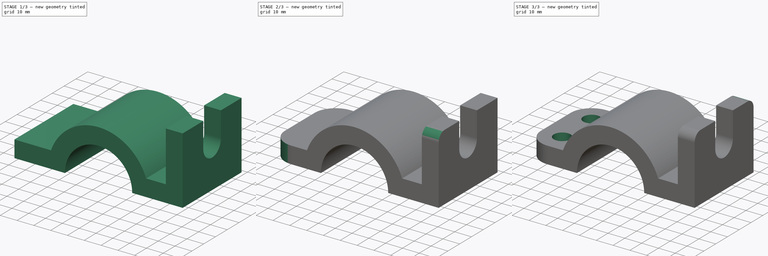
[diagram: build sequence overview — one tinted view per stage of 3, left to right]
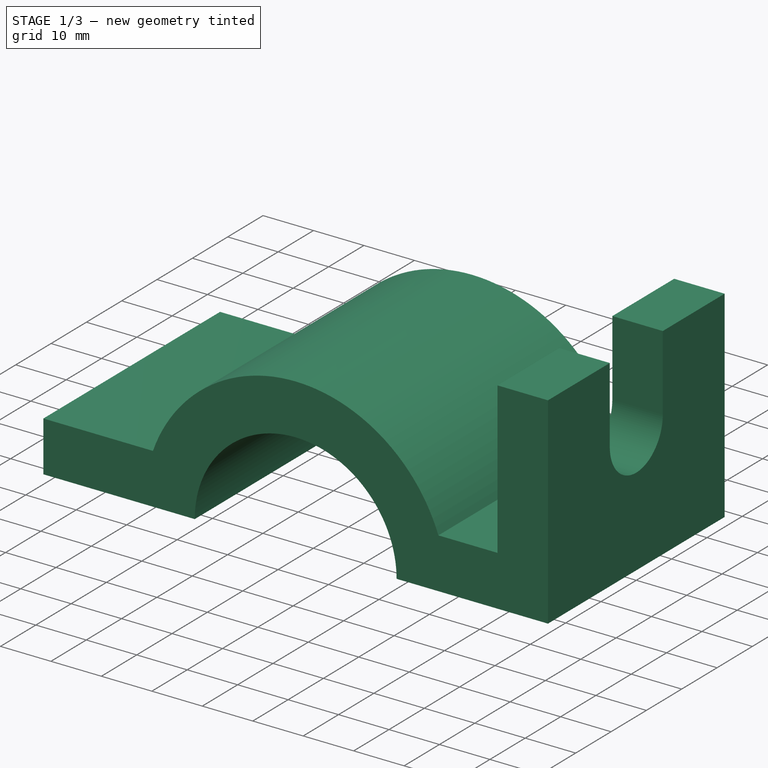
[diagram: stage 1 of 3 — iso view after this stage's code; geometry added in this stage tinted green]
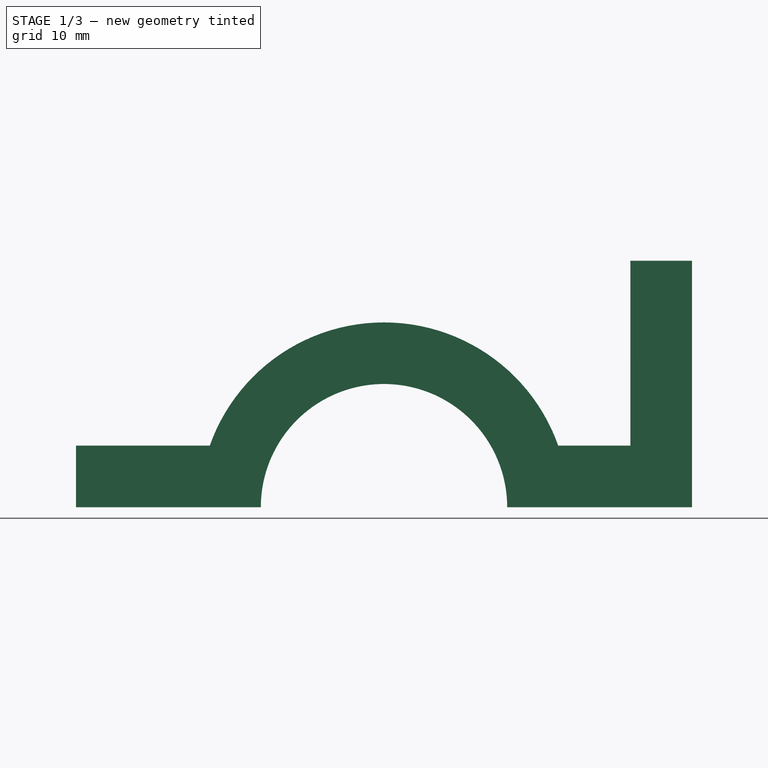
[diagram: stage 1 of 3 — front view after this stage's code; geometry added in this stage tinted green]
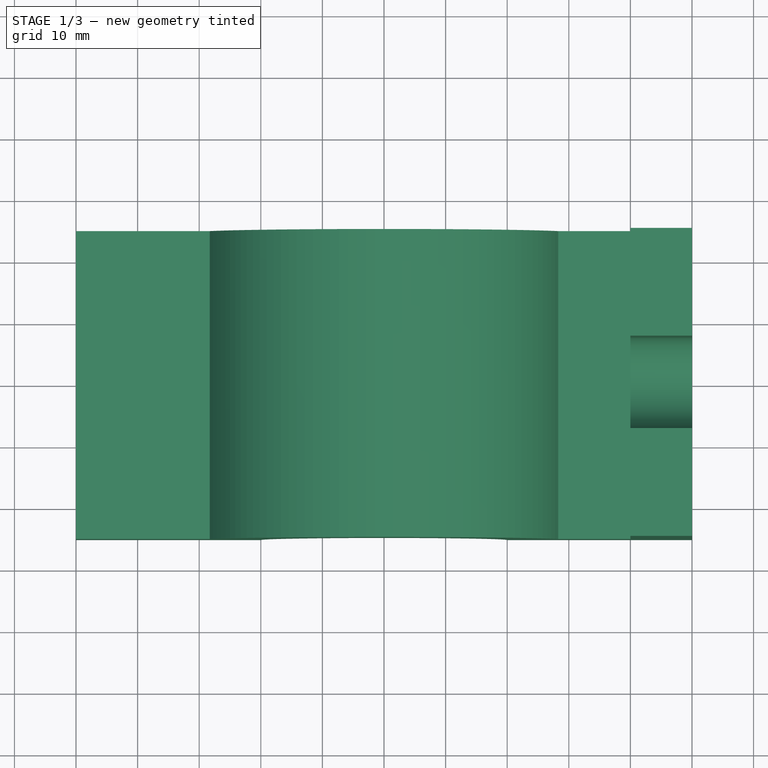
[diagram: stage 1 of 3 — top view after this stage's code; geometry added in this stage tinted green]
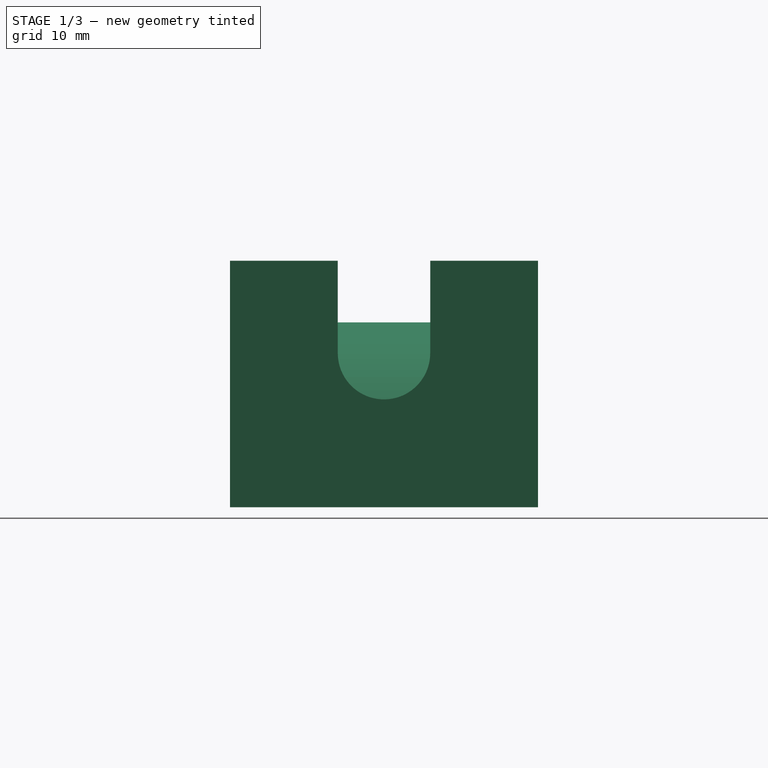
[diagram: stage 1 of 3 — right view after this stage's code; geometry added in this stage tinted green]
FCSTD DOCUMENT  (FreeCAD 0.16R)
Label: Ejer final 14
License: All rights reserved
LicenseURL: http://en.wikipedia.org/wiki/All_rights_reserved
objects: PartDesign::Fillet×4, Sketcher::SketchObject×3, PartDesign::Pad×2, PartDesign::Pocket×1
note: 13 computed .brp shape members not serialized (recipe doc carries the construction recipe); baked Part::Feature solids carry a one-line shape summary decoded from their .brp

FEATURE [Sketcher::SketchObject] Sketch
  Placement = pos=(0,0,0) rot=(-1,0,0;4.71239rad)
  sketch-geometry (8):
    g0: LineSegment StartX=-50 StartY=0 StartZ=0 EndX=-20 EndY=0 EndZ=0
    g1: ArcOfCircle CenterX=0 CenterY=0 CenterZ=0 NormalX=0 NormalY=0 NormalZ=1 Radius=20 StartAngle=0 EndAngle=3.14159
    g2: LineSegment StartX=20 StartY=0 StartZ=0 EndX=50 EndY=0 EndZ=0
    g3: LineSegment StartX=-50 StartY=10 StartZ=0 EndX=-28.2843 EndY=10 EndZ=0
    g4: ArcOfCircle CenterX=0 CenterY=0 CenterZ=0 NormalX=0 NormalY=0 NormalZ=1 Radius=30 StartAngle=0.339837 EndAngle=2.80176
    g5: LineSegment StartX=28.2843 StartY=10 StartZ=0 EndX=50 EndY=10 EndZ=0
    g6: LineSegment StartX=-50 StartY=0 StartZ=0 EndX=-50 EndY=10 EndZ=0
    g7: LineSegment StartX=50 StartY=0 StartZ=0 EndX=50 EndY=10 EndZ=0
  constraints (25):
    c: PointOnObject(g0,g-1)
    c: PointOnObject(g0,g-1)
    c: Coincident(g1,g-1)
    c: Coincident(g1,g0)
    c: Coincident(g2,g1)
    c: Horizontal(g2)
    c: Horizontal(g3)
    c: PointOnObject(g4,g-2)
    c: Coincident(g4,g3)
    c: Coincident(g5,g4)
    c: Horizontal(g5)
    c: Coincident(g4,g-1)
    c: Radius(g4) = 30
    c: Radius(g1) = 20
    c: DistanceX(g2,g2) = 30
    c: DistanceX(g0,g0) = 30
    c: Coincident(g6,g0)
    c: Coincident(g6,g3)
    c: Coincident(g7,g2)
    c: Coincident(g7,g5)
    c: Vertical(g7)
    c: DistanceY(g7,g7) = 10
    c: PointOnObject(g1,g-1)
    c: Vertical(g6)
    c: DistanceY(g6,g6) = 10
FEATURE [PartDesign::Pad] Pad
  Length = 50
  Length2 = 100
  Midplane = true
  Placement = pos=(0,0,0) rot=(-1,0,0;4.71239rad)
  Sketch = -> Sketch
  Type = 0
FEATURE [Sketcher::SketchObject] Sketch001
  ExternalGeometry = -> [Pad]
  Placement = pos=(50,0,0) rot=(0.707107,0,0.707107;3.14159rad)
  Support = -> Pad [Face5]
  sketch-geometry (8):
    g0: LineSegment StartX=0 StartY=25 StartZ=0 EndX=40 EndY=25 EndZ=0
    g1: LineSegment StartX=40 StartY=25 StartZ=0 EndX=40 EndY=7.5 EndZ=0
    g2: LineSegment StartX=40 StartY=7.5 StartZ=0 EndX=25 EndY=7.5 EndZ=0
    g3: LineSegment StartX=0 StartY=25 StartZ=0 EndX=0 EndY=-25 EndZ=0
    g4: LineSegment StartX=0 StartY=-25 StartZ=0 EndX=40 EndY=-25 EndZ=0
    g5: LineSegment StartX=40 StartY=-25 StartZ=0 EndX=40 EndY=-7.5 EndZ=0
    g6: LineSegment StartX=40 StartY=-7.5 StartZ=0 EndX=25 EndY=-7.5 EndZ=0
    g7: ArcOfCircle CenterX=25 CenterY=0 CenterZ=0 NormalX=0 NormalY=0 NormalZ=1 Radius=7.5 StartAngle=1.5708 EndAngle=4.71239
  constraints (23):
    c: Coincident(g-3,g0)
    c: Horizontal(g0)
    c: Coincident(g0,g1)
    c: Vertical(g1)
    c: Coincident(g1,g2)
    c: Coincident(g0,g3)
    c: Coincident(g3,g-3)
    c: Coincident(g3,g4)
    c: Horizontal(g4)
    c: Coincident(g4,g5)
    c: Vertical(g5)
    c: Coincident(g5,g6)
    c: Horizontal(g6)
    c: PointOnObject(g7,g-1)
    c: Radius(g7) = 7.5
    c: DistanceX(g-1,g7) = 25
    c: Coincident(g7,g2)
    c: Coincident(g7,g6)
    c: Tangent(g7,g2)
    c: Tangent(g6,g7)
    c: DistanceX(g0,g0) = 40
    c: DistanceX(g4,g4) = 40
    c: DistanceY(g1,g1) = 17.5
FEATURE [PartDesign::Pad] Pad001
  Length = 10
  Length2 = 100
  Placement = pos=(0,0,0) rot=(-1,0,0;4.71239rad)
  Reversed = true
  Sketch = -> Sketch001
  Type = 0
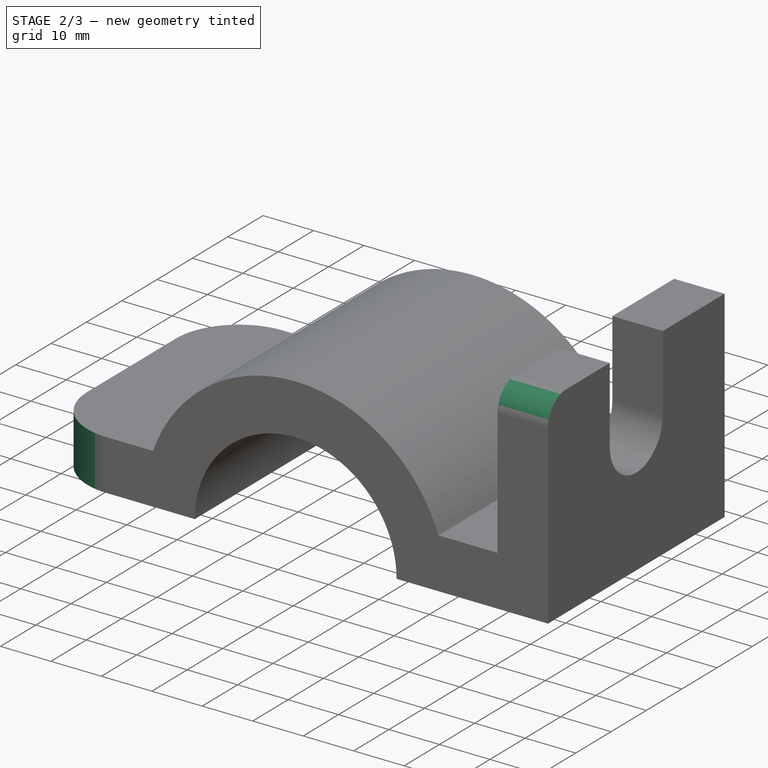
[diagram: stage 2 of 3 — iso view after this stage's code; geometry added in this stage tinted green]
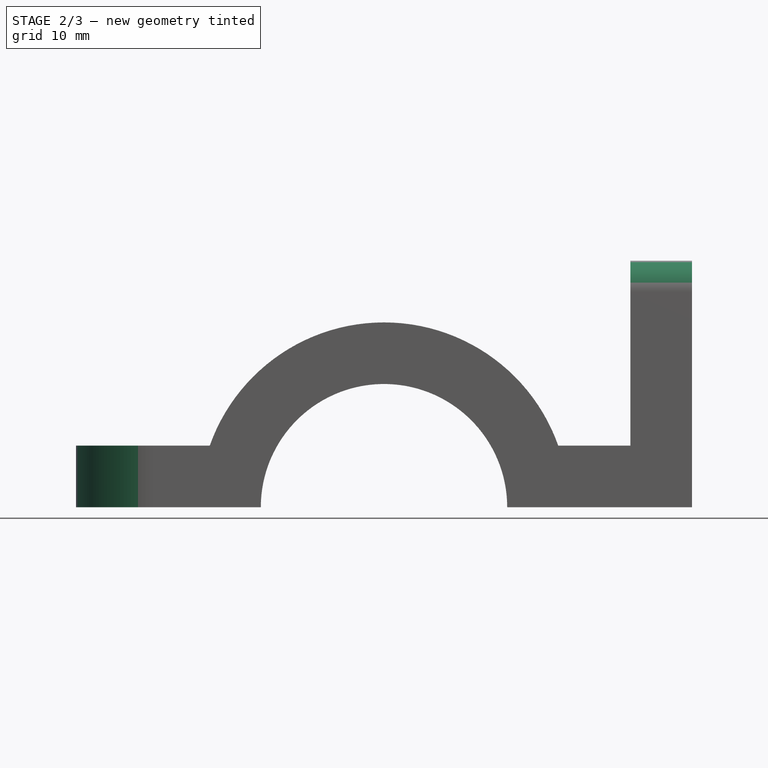
[diagram: stage 2 of 3 — front view after this stage's code; geometry added in this stage tinted green]
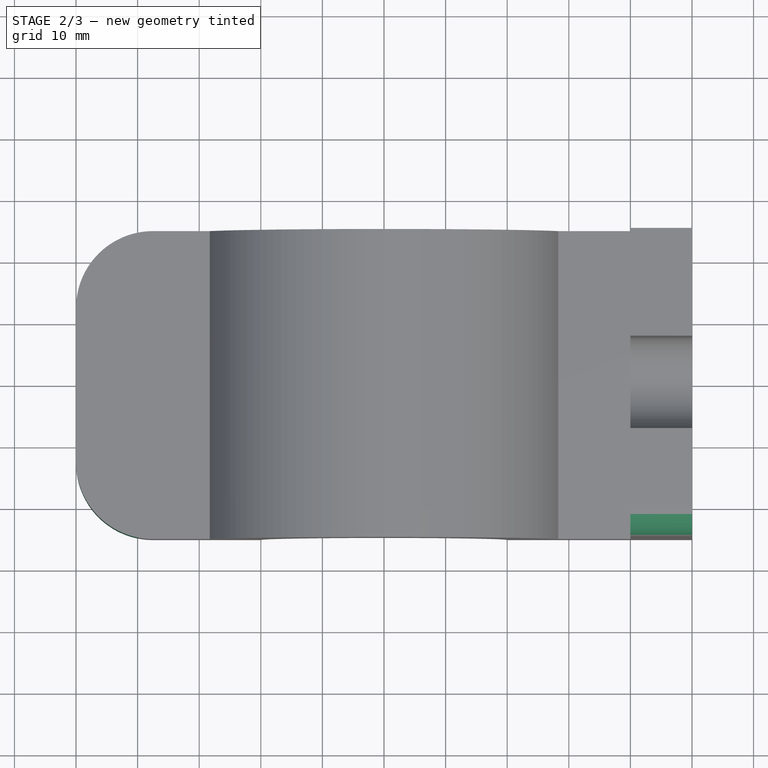
[diagram: stage 2 of 3 — top view after this stage's code; geometry added in this stage tinted green]
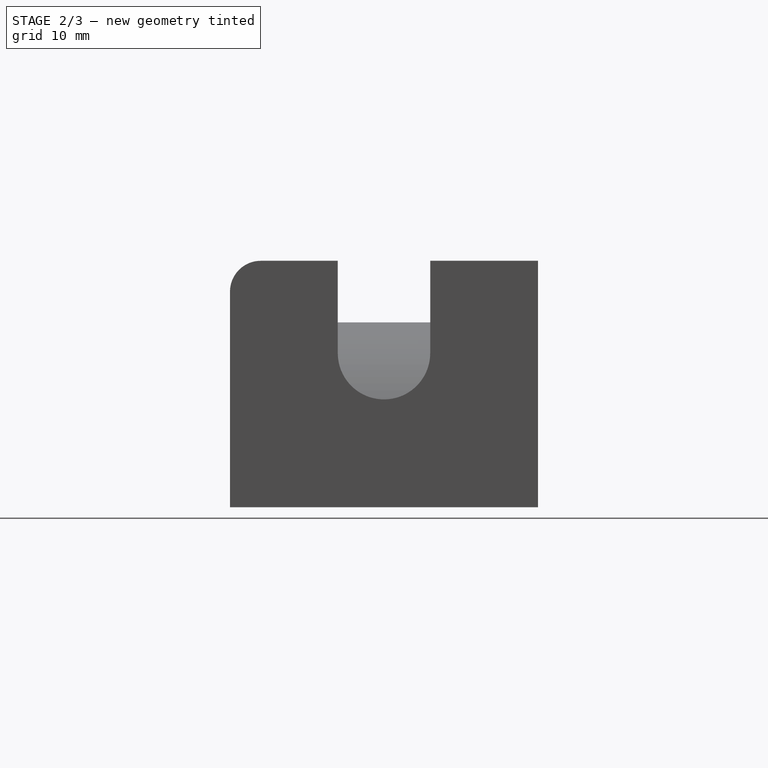
[diagram: stage 2 of 3 — right view after this stage's code; geometry added in this stage tinted green]
FEATURE [PartDesign::Fillet] Fillet
  Base = -> Pad001 [Edge4]
  Placement = pos=(0,0,0) rot=(-1,0,0;4.71239rad)
  Radius = 12.5
FEATURE [PartDesign::Fillet] Fillet001
  Base = -> Fillet [Edge3]
  Placement = pos=(0,0,0) rot=(-1,0,0;4.71239rad)
  Radius = 12.5
FEATURE [PartDesign::Fillet] Fillet002
  Base = -> Fillet001 [Edge29]
  Placement = pos=(0,0,0) rot=(-1,0,0;4.71239rad)
  Radius = 5
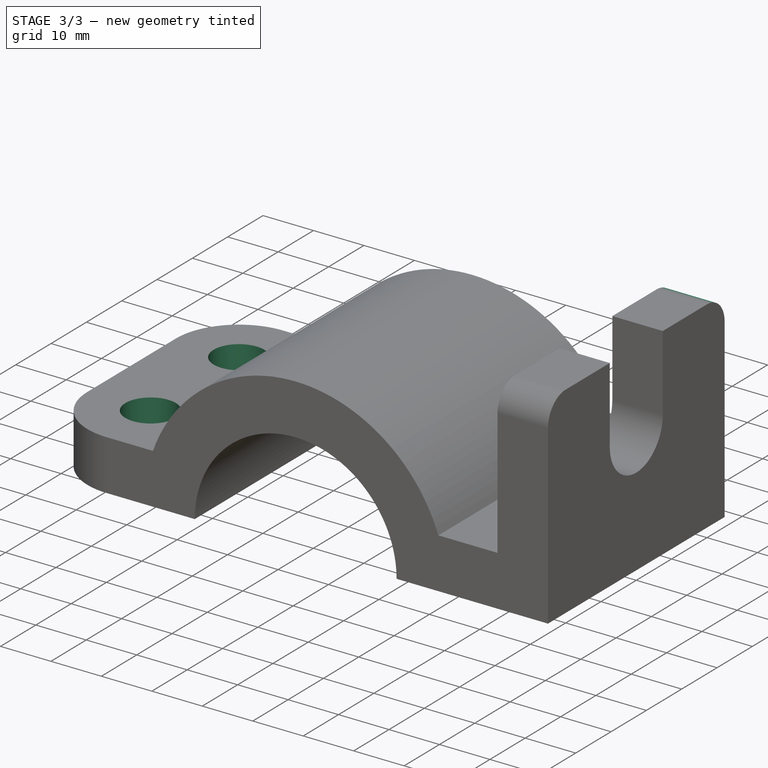
[diagram: stage 3 of 3 — iso view after this stage's code; geometry added in this stage tinted green]
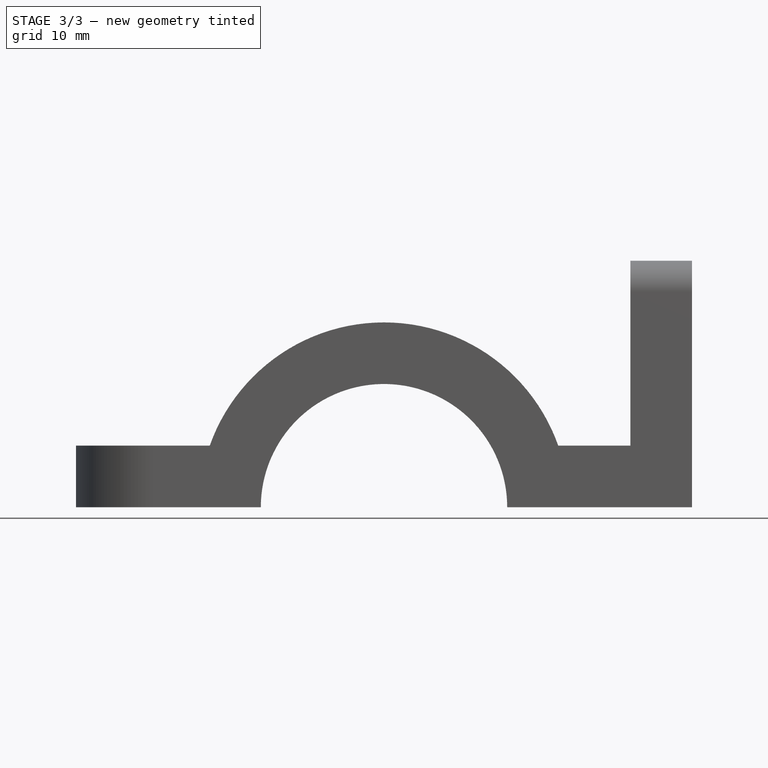
[diagram: stage 3 of 3 — front view after this stage's code; geometry added in this stage tinted green]
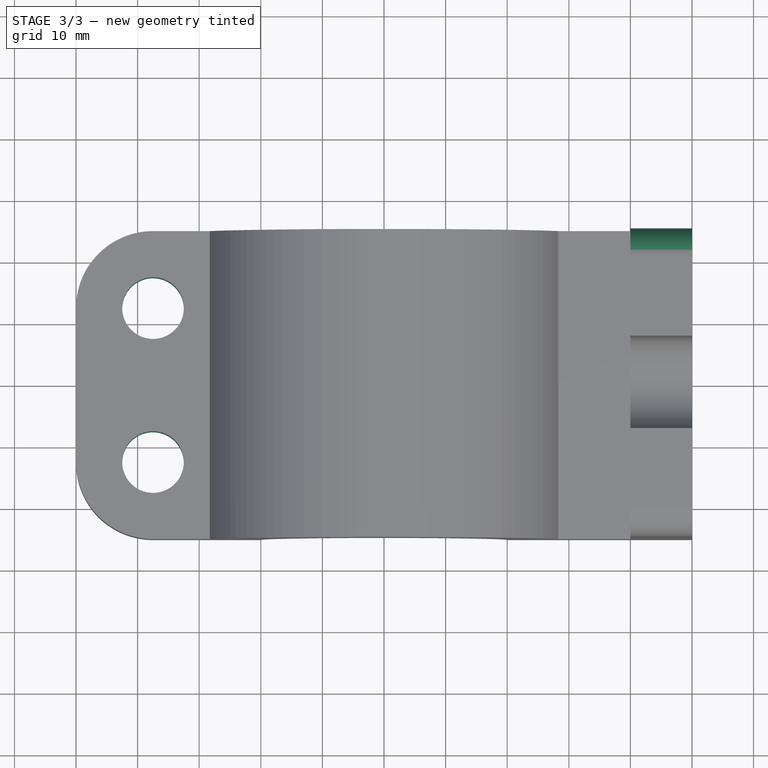
[diagram: stage 3 of 3 — top view after this stage's code; geometry added in this stage tinted green]
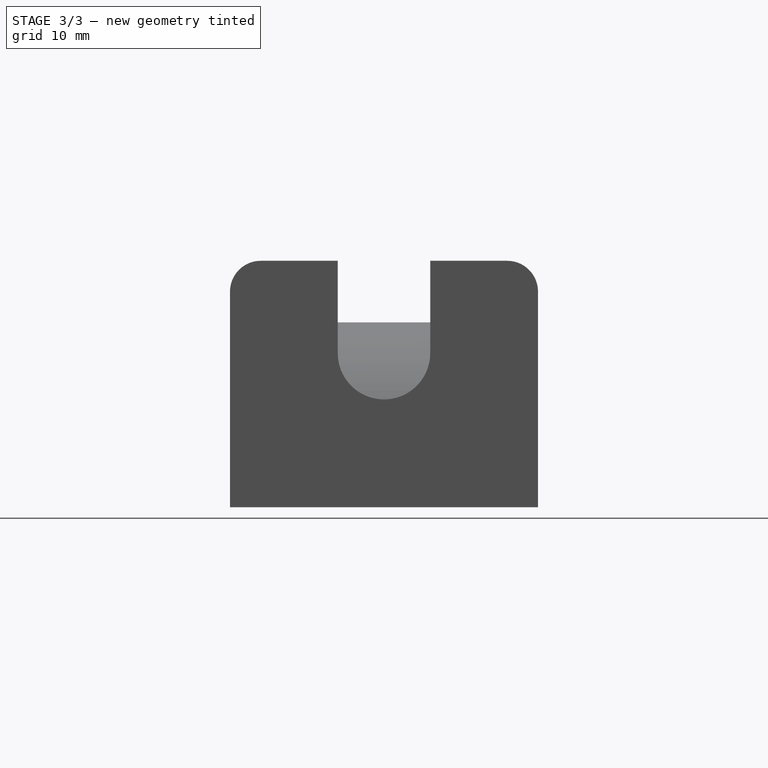
[diagram: stage 3 of 3 — right view after this stage's code; geometry added in this stage tinted green]
FEATURE [PartDesign::Fillet] Fillet003
  Base = -> Fillet002 [Edge50]
  Placement = pos=(0,0,0) rot=(-1,0,0;4.71239rad)
  Radius = 5
FEATURE [Sketcher::SketchObject] Sketch002
  Placement = pos=(0,0,10) rot=(0,0,1;3.14159rad)
  Support = -> Fillet003 [Face15]
  sketch-geometry (2):
    g0: Circle CenterX=37.5 CenterY=12.5 CenterZ=0 NormalX=0 NormalY=0 NormalZ=1 Radius=5
    g1: Circle CenterX=37.5 CenterY=-12.5 CenterZ=0 NormalX=0 NormalY=0 NormalZ=1 Radius=5
  constraints (6):
    c: Radius(g0) = 5
    c: Radius(g1) = 5
    c: DistanceY(g1,g0) = 25
    c: DistanceX(g-1,g0) = 37.5
    c: DistanceX(g-1,g1) = 37.5
    c: Symmetric(g0,g1,g-1)
FEATURE [PartDesign::Pocket] Pocket
  Length = 5
  Placement = pos=(0,0,0) rot=(-1,0,0;4.71239rad)
  Sketch = -> Sketch002
  Type = 1
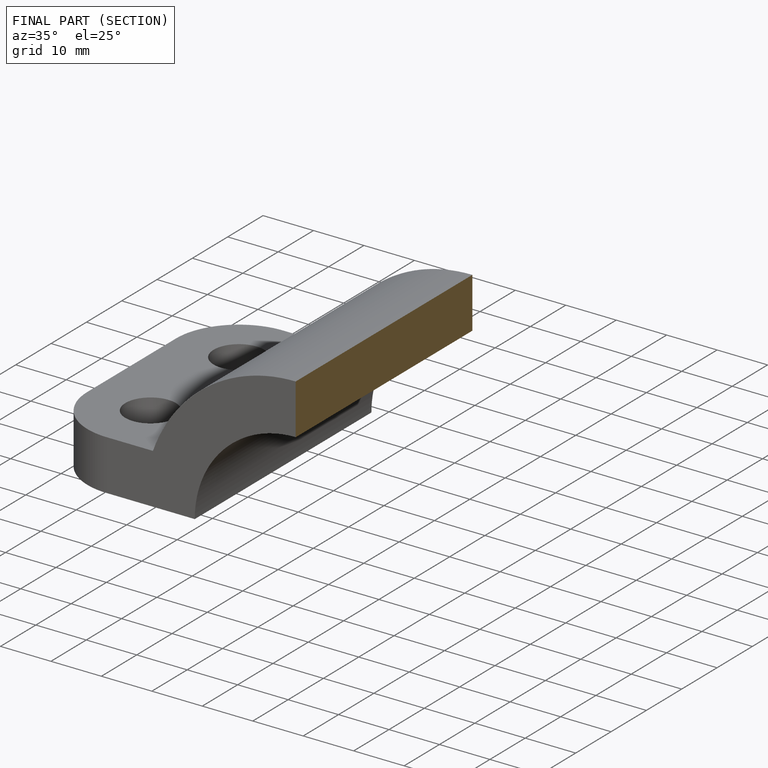
[diagram: finished part — half-section view (interior)]
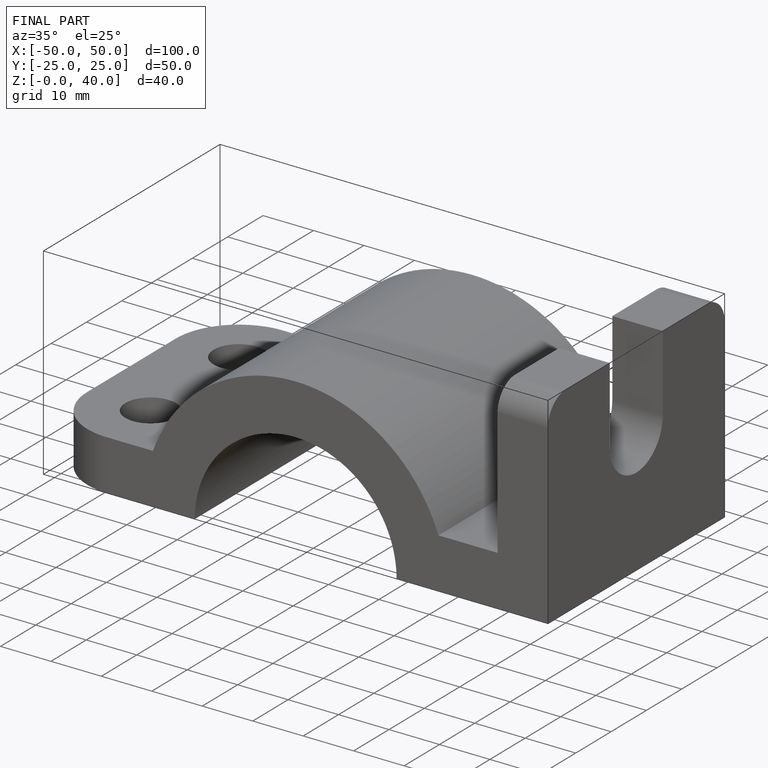
[diagram: finished part — iso view with bounding-box wireframe]
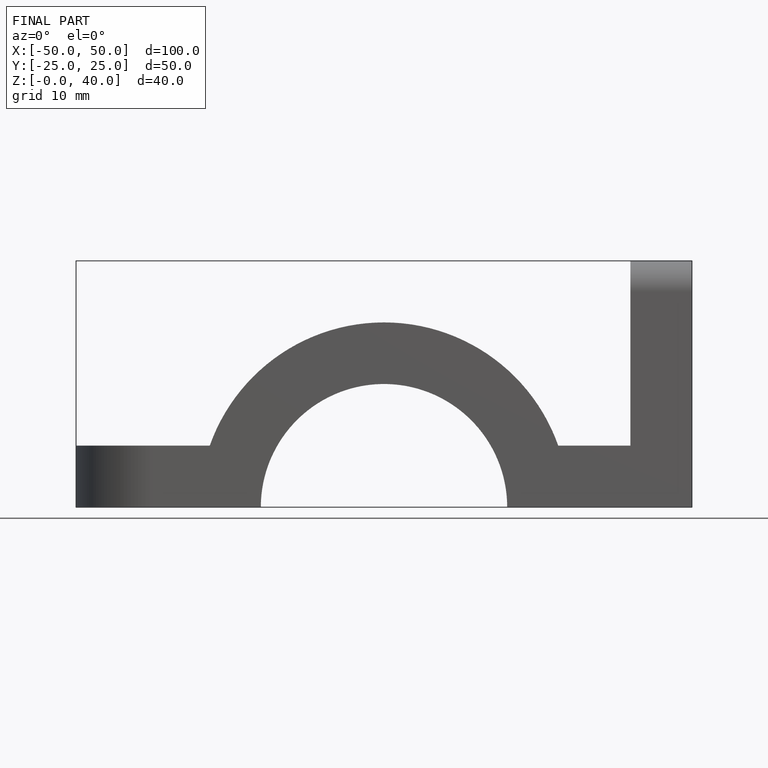
[diagram: finished part — front view with bounding-box wireframe]
